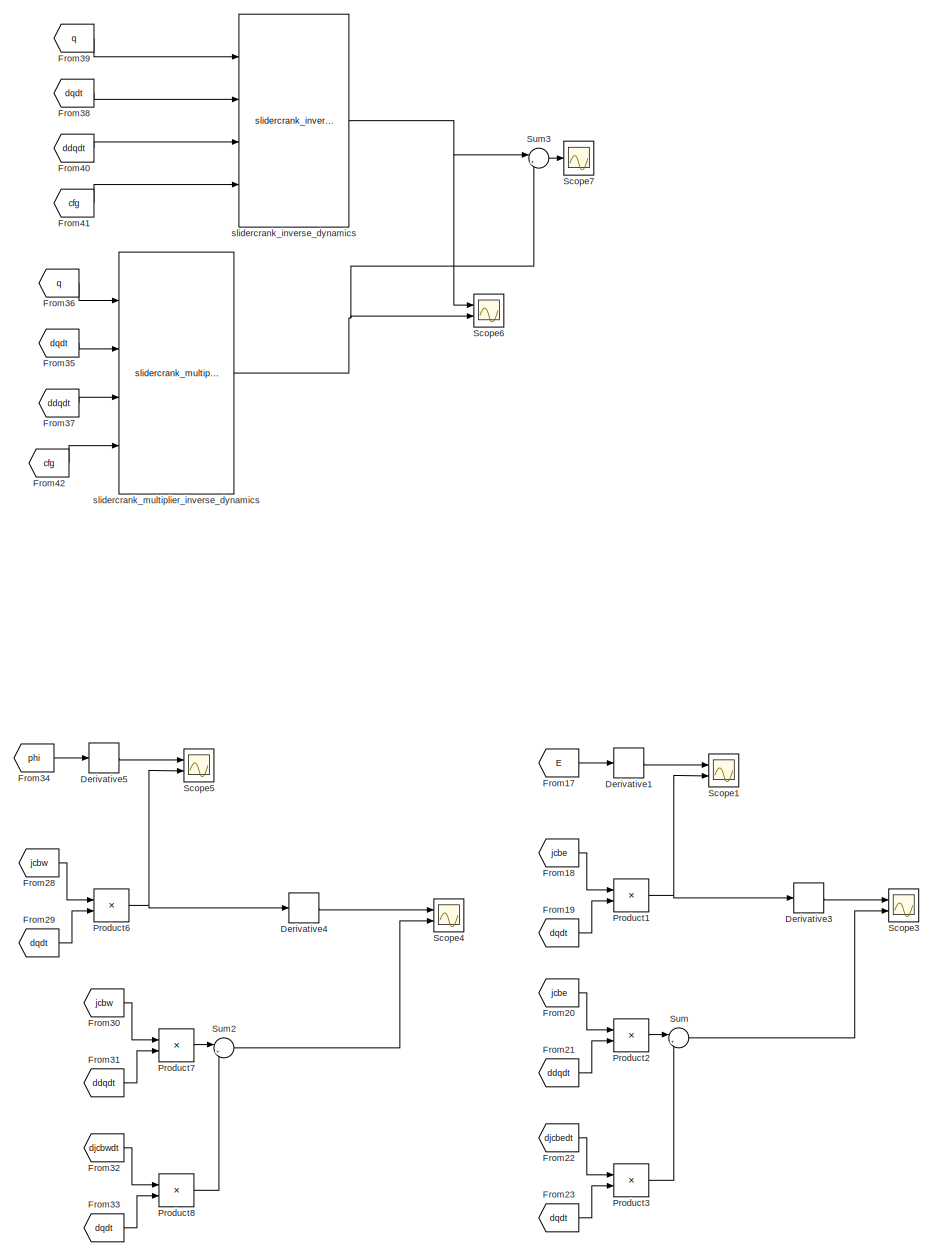
[diagram: root canvas - part 1/3, right side, full height]
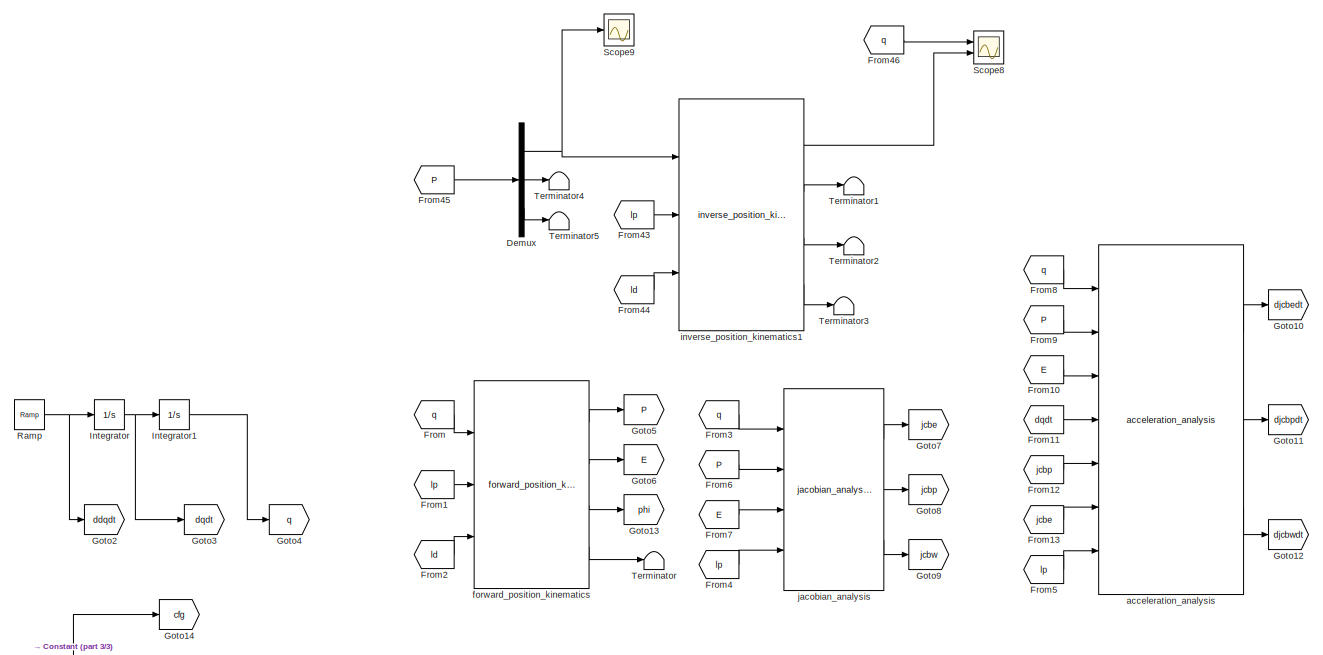
[diagram: root canvas - part 2/3, top left region]
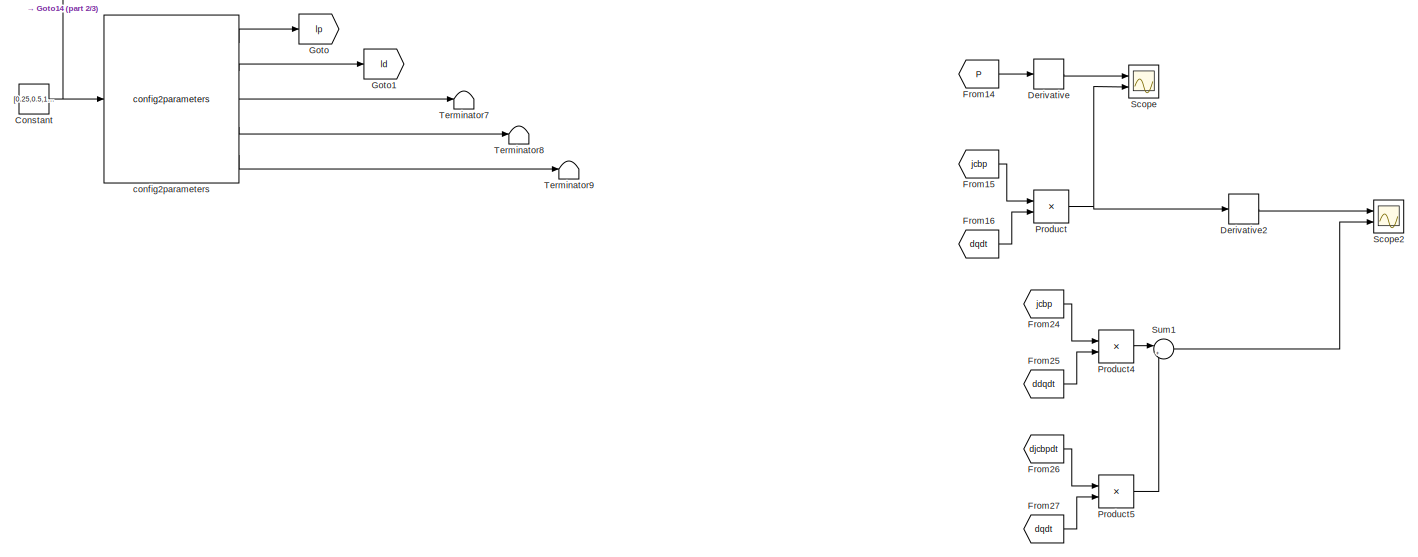
[diagram: root canvas - part 3/3, bottom left region]
MODEL slx_1e80d35b7363
KIND model
CONFIG AbsTol = auto
CONFIG EnableMultiTasking = off
CONFIG FixedStep = auto
CONFIG MaxStep = 1e-3
CONFIG MinStep = auto
CONFIG RelTol = 1e-3
CONFIG SampleTimeConstraint = Unconstrained
CONFIG Solver = VariableStepAuto
CONFIG SolverName = VariableStepAuto
CONFIG StartTime = 0.0
CONFIG StopTime = 2*pi()
BLOCK [Constant] Constant
  Value = [0.25,0.5,1,2,0.5]
BLOCK [Demux] Demux
  DisplayOption = bar
  Outputs = 3
  Ports = [1, 3]
BLOCK [Derivative] Derivative
BLOCK [Derivative] Derivative1
BLOCK [Derivative] Derivative2
BLOCK [Derivative] Derivative3
BLOCK [Derivative] Derivative4
BLOCK [Derivative] Derivative5
BLOCK [From] From
  GotoTag = q
BLOCK [From] From1
  GotoTag = lp
BLOCK [From] From10
  GotoTag = E
BLOCK [From] From11
  GotoTag = dqdt
BLOCK [From] From12
  GotoTag = jcbp
BLOCK [From] From13
  GotoTag = jcbe
BLOCK [From] From14
  GotoTag = P
BLOCK [From] From15
  GotoTag = jcbp
BLOCK [From] From16
  GotoTag = dqdt
BLOCK [From] From17
  GotoTag = E
BLOCK [From] From18
  GotoTag = jcbe
BLOCK [From] From19
  GotoTag = dqdt
BLOCK [From] From2
  GotoTag = ld
BLOCK [From] From20
  GotoTag = jcbe
BLOCK [From] From21
  GotoTag = ddqdt
BLOCK [From] From22
  GotoTag = djcbedt
BLOCK [From] From23
  GotoTag = dqdt
BLOCK [From] From24
  GotoTag = jcbp
BLOCK [From] From25
  GotoTag = ddqdt
BLOCK [From] From26
  GotoTag = djcbpdt
BLOCK [From] From27
  GotoTag = dqdt
BLOCK [From] From28
  GotoTag = jcbw
BLOCK [From] From29
  GotoTag = dqdt
BLOCK [From] From3
  GotoTag = q
BLOCK [From] From30
  GotoTag = jcbw
BLOCK [From] From31
  GotoTag = ddqdt
BLOCK [From] From32
  GotoTag = djcbwdt
BLOCK [From] From33
  GotoTag = dqdt
BLOCK [From] From34
  GotoTag = phi
BLOCK [From] From35
  GotoTag = dqdt
BLOCK [From] From36
  GotoTag = q
BLOCK [From] From37
  GotoTag = ddqdt
BLOCK [From] From38
  GotoTag = dqdt
BLOCK [From] From39
  GotoTag = q
BLOCK [From] From4
  GotoTag = lp
BLOCK [From] From40
  GotoTag = ddqdt
BLOCK [From] From41
  GotoTag = cfg
BLOCK [From] From42
  GotoTag = cfg
BLOCK [From] From43
  GotoTag = lp
BLOCK [From] From44
  GotoTag = ld
BLOCK [From] From45
  GotoTag = P
BLOCK [From] From46
  GotoTag = q
BLOCK [From] From5
  GotoTag = lp
BLOCK [From] From6
  GotoTag = P
BLOCK [From] From7
  GotoTag = E
BLOCK [From] From8
  GotoTag = q
BLOCK [From] From9
  GotoTag = P
BLOCK [Goto] Goto
  GotoTag = lp
BLOCK [Goto] Goto1
  GotoTag = ld
BLOCK [Goto] Goto10
  GotoTag = djcbedt
BLOCK [Goto] Goto11
  GotoTag = djcbpdt
BLOCK [Goto] Goto12
  GotoTag = djcbwdt
BLOCK [Goto] Goto13
  GotoTag = phi
BLOCK [Goto] Goto14
  GotoTag = cfg
BLOCK [Goto] Goto2
  GotoTag = ddqdt
BLOCK [Goto] Goto3
  GotoTag = dqdt
BLOCK [Goto] Goto4
  GotoTag = q
BLOCK [Goto] Goto5
  GotoTag = P
BLOCK [Goto] Goto6
  GotoTag = E
BLOCK [Goto] Goto7
  GotoTag = jcbe
BLOCK [Goto] Goto8
  GotoTag = jcbp
BLOCK [Goto] Goto9
  GotoTag = jcbw
BLOCK [Integrator] Integrator
  Ports = [1, 1]
BLOCK [Integrator] Integrator1
  Ports = [1, 1]
BLOCK [Product] Product
  InputSameDT = off
  OutDataTypeStr = Inherit: Inherit via internal rule
  Ports = [2, 1]
  RndMeth = Floor
  SaturateOnIntegerOverflow = off
BLOCK [Product] Product1
  InputSameDT = off
  OutDataTypeStr = Inherit: Inherit via internal rule
  Ports = [2, 1]
  RndMeth = Floor
  SaturateOnIntegerOverflow = off
BLOCK [Product] Product2
  InputSameDT = off
  OutDataTypeStr = Inherit: Inherit via internal rule
  Ports = [2, 1]
  RndMeth = Floor
  SaturateOnIntegerOverflow = off
BLOCK [Product] Product3
  InputSameDT = off
  OutDataTypeStr = Inherit: Inherit via internal rule
  Ports = [2, 1]
  RndMeth = Floor
  SaturateOnIntegerOverflow = off
BLOCK [Product] Product4
  InputSameDT = off
  OutDataTypeStr = Inherit: Inherit via internal rule
  Ports = [2, 1]
  RndMeth = Floor
  SaturateOnIntegerOverflow = off
BLOCK [Product] Product5
  InputSameDT = off
  OutDataTypeStr = Inherit: Inherit via internal rule
  Ports = [2, 1]
  RndMeth = Floor
  SaturateOnIntegerOverflow = off
BLOCK [Product] Product6
  InputSameDT = off
  OutDataTypeStr = Inherit: Inherit via internal rule
  Ports = [2, 1]
  RndMeth = Floor
  SaturateOnIntegerOverflow = off
BLOCK [Product] Product7
  InputSameDT = off
  OutDataTypeStr = Inherit: Inherit via internal rule
  Ports = [2, 1]
  RndMeth = Floor
  SaturateOnIntegerOverflow = off
BLOCK [Product] Product8
  InputSameDT = off
  OutDataTypeStr = Inherit: Inherit via internal rule
  Ports = [2, 1]
  RndMeth = Floor
  SaturateOnIntegerOverflow = off
BLOCK [Reference] Ramp  REF=simulink/Sources/Ramp
  Ports = [0, 1]
  SourceBlock = simulink/Sources/Ramp
  SourceProductBaseCode = SL
  SourceProductName = Simulink
  SourceType = Ramp
BLOCK [Scope] Scope
  NumInputPorts = 2
  Ports = [2]
  ScopeSpecificationString = Simulink.scopes.TimeScopeBlockCfg('CurrentConfiguration', extmgr.ConfigurationSet(extmgr.Configuration('Core','General UI',true),extmgr.Configuration('Core','Source UI',true),extmgr.Configuration('Sources','WiredSimulink',true),extmgr.Configuration('Visuals','Time Domain',true,'SerializedDisplays',{struct('MinYLimReal','0.76757','MaxYLimReal','1.71522','YLabelReal','','MinYLimMag','0.76757','MaxYL...<+1444ch>
BLOCK [Scope] Scope1
  NumInputPorts = 2
  Ports = [2]
  ScopeSpecificationString = Simulink.scopes.TimeScopeBlockCfg('CurrentConfiguration', extmgr.ConfigurationSet(extmgr.Configuration('Core','General UI',true),extmgr.Configuration('Core','Source UI',true),extmgr.Configuration('Sources','WiredSimulink',true,'DataLoggingVariableName','ScopeData1'),extmgr.Configuration('Visuals','Time Domain',true,'SerializedDisplays',{struct('MinYLimReal','0.58724','MaxYLimReal','1.51625','YLabe...<+1489ch>
BLOCK [Scope] Scope2
  NumInputPorts = 2
  Ports = [2]
  ScopeSpecificationString = Simulink.scopes.TimeScopeBlockCfg('CurrentConfiguration', extmgr.ConfigurationSet(extmgr.Configuration('Core','General UI',true),extmgr.Configuration('Core','Source UI',true),extmgr.Configuration('Sources','WiredSimulink',true,'DataLoggingVariableName','ScopeData2'),extmgr.Configuration('Visuals','Time Domain',true,'SerializedDisplays',{struct('MinYLimReal','25.06614','MaxYLimReal','36.89453','YLa...<+1485ch>
BLOCK [Scope] Scope3
  NumInputPorts = 2
  Ports = [2]
  ScopeSpecificationString = Simulink.scopes.TimeScopeBlockCfg('CurrentConfiguration', extmgr.ConfigurationSet(extmgr.Configuration('Core','General UI',true),extmgr.Configuration('Core','Source UI',true),extmgr.Configuration('Sources','WiredSimulink',true,'DataLoggingVariableName','ScopeData3'),extmgr.Configuration('Visuals','Time Domain',true,'SerializedDisplays',{struct('MinYLimReal','12.45445','MaxYLimReal','29.64068','YLa...<+1482ch>
BLOCK [Scope] Scope4
  NumInputPorts = 2
  Ports = [2]
  ScopeSpecificationString = Simulink.scopes.TimeScopeBlockCfg('CurrentConfiguration', extmgr.ConfigurationSet(extmgr.Configuration('Core','General UI',true),extmgr.Configuration('Core','Source UI',true),extmgr.Configuration('Sources','WiredSimulink',true,'DataLoggingVariableName','ScopeData4'),extmgr.Configuration('Visuals','Time Domain',true,'SerializedDisplays',{struct('MinYLimReal','-51.779','MaxYLimReal','65.8223','YLabe...<+1502ch>
BLOCK [Scope] Scope5
  NumInputPorts = 2
  Ports = [2]
  ScopeSpecificationString = Simulink.scopes.TimeScopeBlockCfg('CurrentConfiguration', extmgr.ConfigurationSet(extmgr.Configuration('Core','General UI',true),extmgr.Configuration('Core','Source UI',true),extmgr.Configuration('Sources','WiredSimulink',true,'DataLoggingVariableName','ScopeData5'),extmgr.Configuration('Visuals','Time Domain',true,'SerializedDisplays',{struct('MinYLimReal','0.2407','MaxYLimReal','1.6384','YLabelR...<+1472ch>
BLOCK [Scope] Scope6
  NumInputPorts = 2
  Ports = [2]
  ScopeSpecificationString = Simulink.scopes.TimeScopeBlockCfg('CurrentConfiguration', extmgr.ConfigurationSet(extmgr.Configuration('Core','General UI',true),extmgr.Configuration('Core','Source UI',true),extmgr.Configuration('Sources','WiredSimulink',true,'DataLoggingVariableName','ScopeData6'),extmgr.Configuration('Visuals','Time Domain',true,'SerializedDisplays',{struct('MinYLimReal','3.84331','MaxYLimReal','7.65056','YLabe...<+1824ch>
BLOCK [Scope] Scope7
  NumInputPorts = 1
  Ports = [1]
  ScopeSpecificationString = Simulink.scopes.TimeScopeBlockCfg('CurrentConfiguration', extmgr.ConfigurationSet(extmgr.Configuration('Core','General UI',true),extmgr.Configuration('Core','Source UI',true),extmgr.Configuration('Sources','WiredSimulink',true,'DataLoggingVariableName','ScopeData7'),extmgr.Configuration('Visuals','Time Domain',true,'SerializedDisplays',{struct('MinYLimReal','-0.000000000000018','MaxYLimReal','0.00...<+1780ch>
BLOCK [Scope] Scope8
  NumInputPorts = 2
  Ports = [2]
  ScopeSpecificationString = Simulink.scopes.TimeScopeBlockCfg('CurrentConfiguration', extmgr.ConfigurationSet(extmgr.Configuration('Core','General UI',true),extmgr.Configuration('Core','Source UI',true),extmgr.Configuration('Sources','WiredSimulink',true,'DataLoggingVariableName','ScopeData1'),extmgr.Configuration('Visuals','Time Domain',true,'SerializedDisplays',{struct('MinYLimReal','-0.11457','MaxYLimReal','0.44169','YLab...<+1451ch>
BLOCK [Scope] Scope9
  NumInputPorts = 1
  Ports = [1]
  ScopeSpecificationString = Simulink.scopes.TimeScopeBlockCfg('CurrentConfiguration', extmgr.ConfigurationSet(extmgr.Configuration('Core','General UI',true),extmgr.Configuration('Core','Source UI',true),extmgr.Configuration('Sources','WiredSimulink',true,'DataLoggingVariableName','ScopeData2'),extmgr.Configuration('Visuals','Time Domain',true,'SerializedDisplays',{struct('MinYLimReal','0.27266','MaxYLimReal','0.80304','YLabe...<+1364ch>
BLOCK [Sum] Sum
  IconShape = round
  InputSameDT = off
  Inputs = |++
  OutDataTypeStr = Inherit: Inherit via internal rule
  Ports = [2, 1]
  SaturateOnIntegerOverflow = off
BLOCK [Sum] Sum1
  IconShape = round
  InputSameDT = off
  Inputs = |++
  OutDataTypeStr = Inherit: Inherit via internal rule
  Ports = [2, 1]
  SaturateOnIntegerOverflow = off
BLOCK [Sum] Sum2
  IconShape = round
  InputSameDT = off
  Inputs = |++
  OutDataTypeStr = Inherit: Inherit via internal rule
  Ports = [2, 1]
  SaturateOnIntegerOverflow = off
BLOCK [Sum] Sum3
  IconShape = round
  InputSameDT = off
  Inputs = |+-
  OutDataTypeStr = Inherit: Inherit via internal rule
  Ports = [2, 1]
  SaturateOnIntegerOverflow = off
BLOCK [Terminator] Terminator
BLOCK [Terminator] Terminator1
BLOCK [Terminator] Terminator2
BLOCK [Terminator] Terminator3
BLOCK [Terminator] Terminator4
BLOCK [Terminator] Terminator5
BLOCK [Terminator] Terminator7
BLOCK [Terminator] Terminator8
BLOCK [Terminator] Terminator9
BLOCK [Reference] acceleration_analysis  REF=slidercrank_basic_library_v1/acceleration_analysis  (lib defined in slx_64627835eefe)
  Ports = [7, 3]
  SourceBlock = slidercrank_basic_library_v1/acceleration_analysis
  SourceType = SubSystem
BLOCK [Reference] config2parameters  REF=slidercrank_basic_library_v1/config2parameters  (lib defined in slx_64627835eefe)
  Ports = [1, 5]
  SourceBlock = slidercrank_basic_library_v1/config2parameters
  SourceType = SubSystem
BLOCK [Reference] forward_position_kinematics  REF=slidercrank_basic_library_v1/forward_position_kinematics  (lib defined in slx_64627835eefe)
  Ports = [3, 4]
  SourceBlock = slidercrank_basic_library_v1/forward_position_kinematics
  SourceType = SubSystem
BLOCK [Reference] inverse_position_kinematics1  REF=slidercrank_basic_library_v1/inverse_position_kinematics  (lib defined in slx_64627835eefe)
  Ports = [3, 4]
  SourceBlock = slidercrank_basic_library_v1/inverse_position_kinematics
  SourceType = SubSystem
BLOCK [Reference] jacobian_analysis  REF=slidercrank_basic_library_v1/jacobian_analysis  (lib defined in slx_64627835eefe)
  Ports = [4, 3]
  SourceBlock = slidercrank_basic_library_v1/jacobian_analysis
  SourceType = SubSystem
BLOCK [Reference] slidercrank_inverse_dynamics  REF=slidercrank_basic_library_v1/slidercrank_inverse_dynamics  (lib defined in slx_64627835eefe)
  Ports = [4, 1]
  SourceBlock = slidercrank_basic_library_v1/slidercrank_inverse_dynamics
  SourceType = SubSystem
BLOCK [Reference] slidercrank_multiplier_inverse_dynamics  REF=slidercrank_basic_library_v1/slidercrank_multiplier_inverse_dynamics  (lib defined in slx_64627835eefe)
  Ports = [4, 1]
  SourceBlock = slidercrank_basic_library_v1/slidercrank_multiplier_inverse_dynamics
  SourceType = SubSystem
NET Constant:1 -> Goto14:1, config2parameters:1
NET Demux:1 -> Scope9:1, inverse_position_kinematics1:1
LINE Demux:2 -> Terminator4:1
LINE Demux:3 -> Terminator5:1
LINE Derivative1:1 -> Scope1:1
LINE Derivative2:1 -> Scope2:1
LINE Derivative3:1 -> Scope3:1
LINE Derivative4:1 -> Scope4:1
LINE Derivative5:1 -> Scope5:1
LINE Derivative:1 -> Scope:1
LINE From10:1 -> acceleration_analysis:3
LINE From11:1 -> acceleration_analysis:4
LINE From12:1 -> acceleration_analysis:5
LINE From13:1 -> acceleration_analysis:6
LINE From14:1 -> Derivative:1
LINE From15:1 -> Product:1
LINE From16:1 -> Product:2
LINE From17:1 -> Derivative1:1
LINE From18:1 -> Product1:1
LINE From19:1 -> Product1:2
LINE From1:1 -> forward_position_kinematics:2
LINE From20:1 -> Product2:1
LINE From21:1 -> Product2:2
LINE From22:1 -> Product3:1
LINE From23:1 -> Product3:2
LINE From24:1 -> Product4:1
LINE From25:1 -> Product4:2
LINE From26:1 -> Product5:1
LINE From27:1 -> Product5:2
LINE From28:1 -> Product6:1
LINE From29:1 -> Product6:2
LINE From2:1 -> forward_position_kinematics:3
LINE From30:1 -> Product7:1
LINE From31:1 -> Product7:2
LINE From32:1 -> Product8:1
LINE From33:1 -> Product8:2
LINE From34:1 -> Derivative5:1
LINE From35:1 -> slidercrank_multiplier_inverse_dynamics:2
LINE From36:1 -> slidercrank_multiplier_inverse_dynamics:1
LINE From37:1 -> slidercrank_multiplier_inverse_dynamics:3
LINE From38:1 -> slidercrank_inverse_dynamics:2
LINE From39:1 -> slidercrank_inverse_dynamics:1
LINE From3:1 -> jacobian_analysis:1
LINE From40:1 -> slidercrank_inverse_dynamics:3
LINE From41:1 -> slidercrank_inverse_dynamics:4
LINE From42:1 -> slidercrank_multiplier_inverse_dynamics:4
LINE From43:1 -> inverse_position_kinematics1:2
LINE From44:1 -> inverse_position_kinematics1:3
LINE From45:1 -> Demux:1
LINE From46:1 -> Scope8:1
LINE From4:1 -> jacobian_analysis:4
LINE From5:1 -> acceleration_analysis:7
LINE From6:1 -> jacobian_analysis:2
LINE From7:1 -> jacobian_analysis:3
LINE From8:1 -> acceleration_analysis:1
LINE From9:1 -> acceleration_analysis:2
LINE From:1 -> forward_position_kinematics:1
LINE Integrator1:1 -> Goto4:1
NET Integrator:1 -> Goto3:1, Integrator1:1
NET Product1:1 -> Derivative3:1, Scope1:2
LINE Product2:1 -> Sum:1
LINE Product3:1 -> Sum:2
LINE Product4:1 -> Sum1:1
LINE Product5:1 -> Sum1:2
NET Product6:1 -> Derivative4:1, Scope5:2
LINE Product7:1 -> Sum2:1
LINE Product8:1 -> Sum2:2
NET Product:1 -> Derivative2:1, Scope:2
NET Ramp:1 -> Goto2:1, Integrator:1
LINE Sum1:1 -> Scope2:2
LINE Sum2:1 -> Scope4:2
LINE Sum3:1 -> Scope7:1
LINE Sum:1 -> Scope3:2
LINE acceleration_analysis:1 -> Goto10:1
LINE acceleration_analysis:2 -> Goto11:1
LINE acceleration_analysis:3 -> Goto12:1
LINE config2parameters:1 -> Goto:1
LINE config2parameters:2 -> Goto1:1
LINE config2parameters:3 -> Terminator7:1
LINE config2parameters:4 -> Terminator8:1
LINE config2parameters:5 -> Terminator9:1
LINE forward_position_kinematics:1 -> Goto5:1
LINE forward_position_kinematics:2 -> Goto6:1
LINE forward_position_kinematics:3 -> Goto13:1
LINE forward_position_kinematics:4 -> Terminator:1
LINE inverse_position_kinematics1:1 -> Scope8:2
LINE inverse_position_kinematics1:2 -> Terminator1:1
LINE inverse_position_kinematics1:3 -> Terminator2:1
LINE inverse_position_kinematics1:4 -> Terminator3:1
LINE jacobian_analysis:1 -> Goto7:1
LINE jacobian_analysis:2 -> Goto8:1
LINE jacobian_analysis:3 -> Goto9:1
NET slidercrank_inverse_dynamics:1 -> Scope6:1, Sum3:1
NET slidercrank_multiplier_inverse_dynamics:1 -> Scope6:2, Sum3:2
note: NET lines group one-source signal fan-out (src -> all destinations, sorted); 1:1 wires keep LINE
